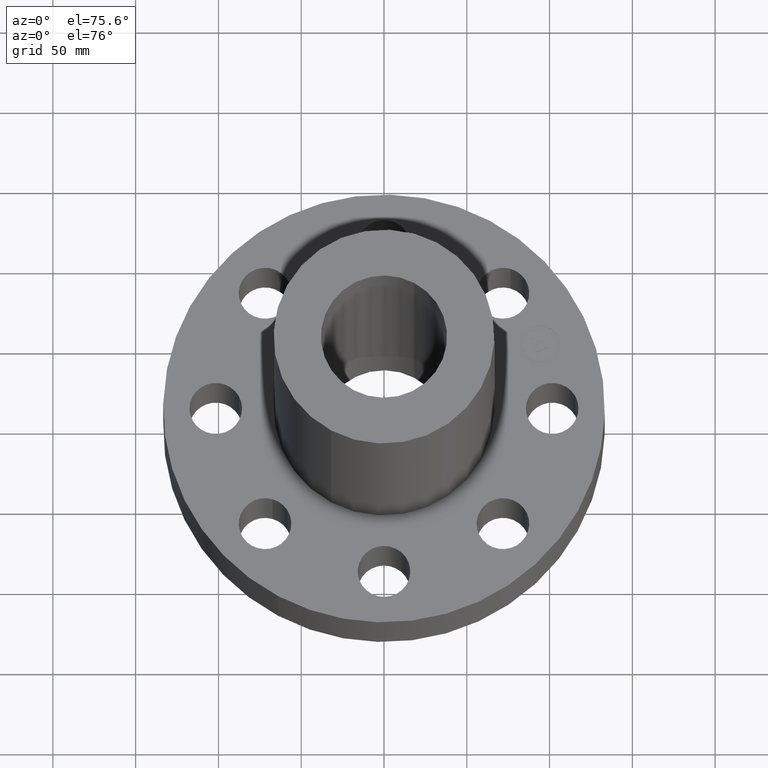
[diagram: clean part render]
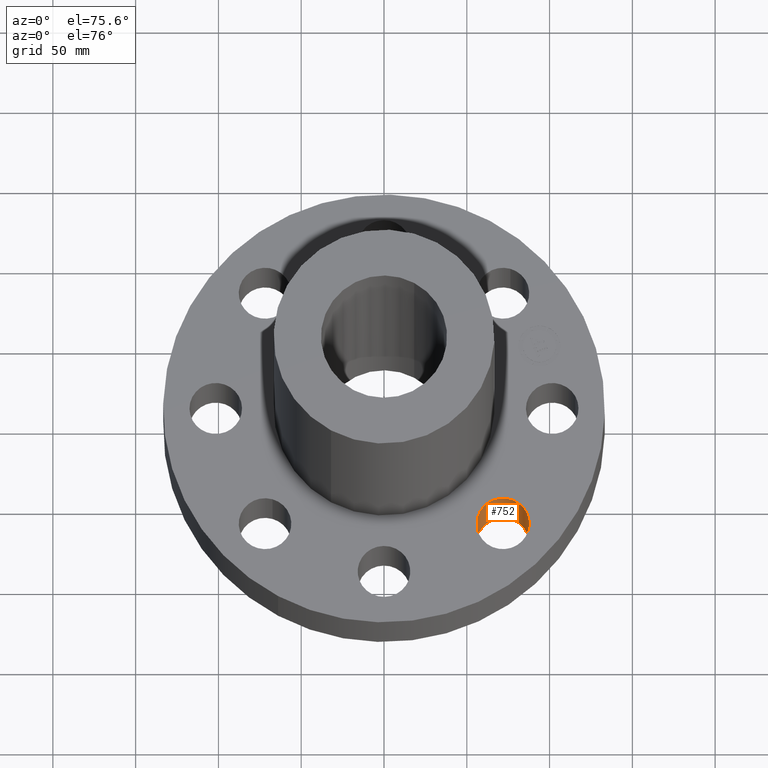
[diagram: same view with one face highlighted and labeled with its STEP entity id]
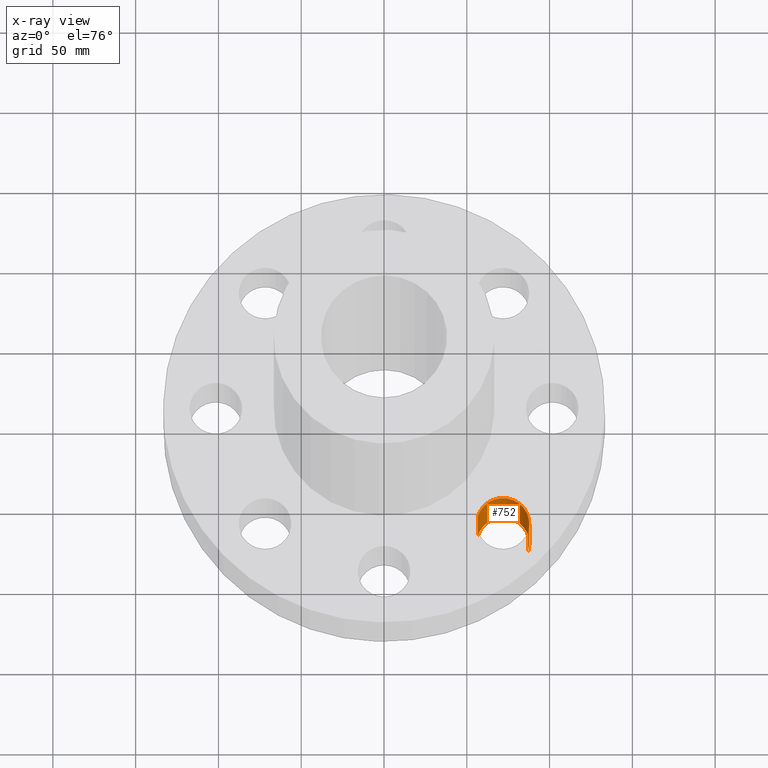
[diagram: x-ray of the same camera — body ghosted, the highlighted face saturated]
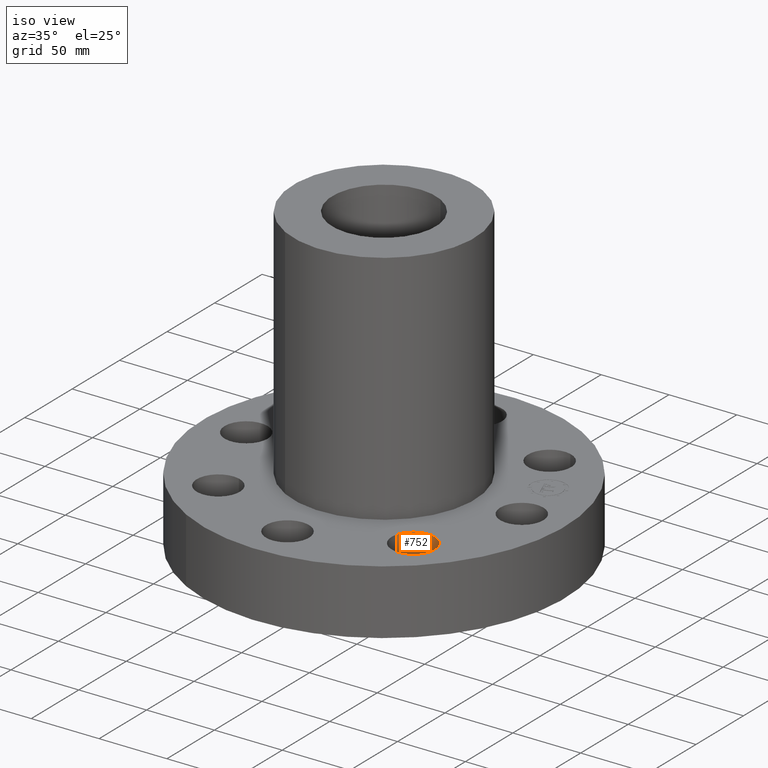
[diagram: same view with one face highlighted and labeled with its STEP entity id]
A machine part, auxiliary view. The second image highlights one B-rep face of the part: STEP entity #752.
The next image is the same camera in x-ray: the body ghosted, the highlighted face saturated — about 1% of this face is hidden behind the body in this view.
A second angle (iso view) of the same face is appended — the face is thin or edge-on in the first view.
In plain terms, the highlighted cylindrical surface (edge-blend (fillet) strip) has radius 15.875 mm, axis along (-0, 0, 1).
Its self-contained STEP definition (entity closure, byte-faithful):
#136=AXIS2_PLACEMENT_3D('Circle Axis2P3D',#134,#135,$) ;
#713=AXIS2_PLACEMENT_3D('Cylinder Axis2P3D',#710,#711,#712) ;
#743=AXIS2_PLACEMENT_3D('Circle Axis2P3D',#741,#742,$) ;
#129=CARTESIAN_POINT('Vertex',(3.4281456435,-3.00438933172,0.)) ;
#131=CARTESIAN_POINT('Vertex',(2.22870860601,-2.65246491779,0.)) ;
#134=CARTESIAN_POINT('Axis2P3D Location',(2.82842712476,-2.82842712476,0.)) ;
#710=CARTESIAN_POINT('Axis2P3D Location',(2.82842712476,-2.82842712476,0.00393700787402)) ;
#715=CARTESIAN_POINT('Line Origine',(2.22870860601,-2.65246491779,0.940000000004)) ;
#719=CARTESIAN_POINT('Vertex',(2.22870860601,-2.65246491779,1.88000000001)) ;
#726=CARTESIAN_POINT('Vertex',(3.4281456435,-3.00438933172,1.88000000001)) ;
#729=CARTESIAN_POINT('Line Origine',(3.4281456435,-3.00438933172,0.940000000004)) ;
#741=CARTESIAN_POINT('Axis2P3D Location',(2.82842712476,-2.82842712476,1.88000000001)) ;
#135=DIRECTION('Axis2P3D Direction',(0.,0.,-0.0393700787402)) ;
#711=DIRECTION('Axis2P3D Direction',(-0.,0.,0.0393700787402)) ;
#712=DIRECTION('Axis2P3D XDirection',(0.0377775444876,-0.0110842335096,0.)) ;
#716=DIRECTION('Vector Direction',(0.,0.,0.0393700787402)) ;
#730=DIRECTION('Vector Direction',(0.,0.,0.0393700787402)) ;
#742=DIRECTION('Axis2P3D Direction',(-0.,0.,0.0393700787402)) ;
#717=VECTOR('Line Direction',#716,0.0393700787402) ;
#731=VECTOR('Line Direction',#730,0.0393700787402) ;
#747=ORIENTED_EDGE('',*,*,#733,.F.) ;
#748=ORIENTED_EDGE('',*,*,#745,.F.) ;
#749=ORIENTED_EDGE('',*,*,#721,.T.) ;
#750=ORIENTED_EDGE('',*,*,#138,.T.) ;
#752=ADVANCED_FACE('PartBody',(#751),#714,.F.) ;
#137=CIRCLE('generated circle',#136,0.625000000002) ;
#744=CIRCLE('generated circle',#743,0.625000000002) ;
#714=CYLINDRICAL_SURFACE('generated cylinder',#713,0.625000000002) ;
#138=EDGE_CURVE('',#132,#130,#137,.T.) ;
#721=EDGE_CURVE('',#720,#132,#718,.F.) ;
#733=EDGE_CURVE('',#727,#130,#732,.F.) ;
#745=EDGE_CURVE('',#720,#727,#744,.F.) ;
#746=EDGE_LOOP('',(#747,#748,#749,#750)) ;
#751=FACE_OUTER_BOUND('',#746,.T.) ;
#718=LINE('Line',#715,#717) ;
#732=LINE('Line',#729,#731) ;
#130=VERTEX_POINT('',#129) ;
#132=VERTEX_POINT('',#131) ;
#720=VERTEX_POINT('',#719) ;
#727=VERTEX_POINT('',#726) ;